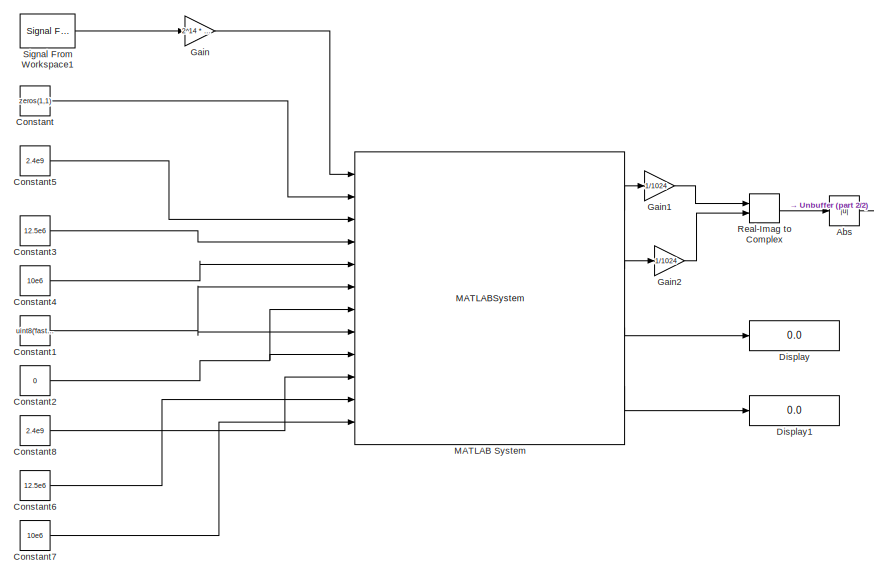
[diagram: root canvas - part 1/2, left side, full height]
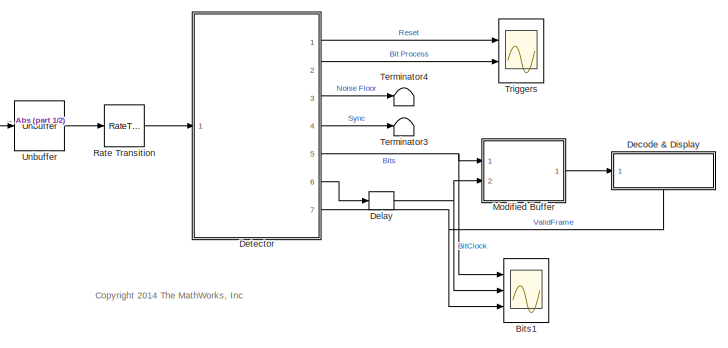
[diagram: root canvas - part 2/2, middle right region]
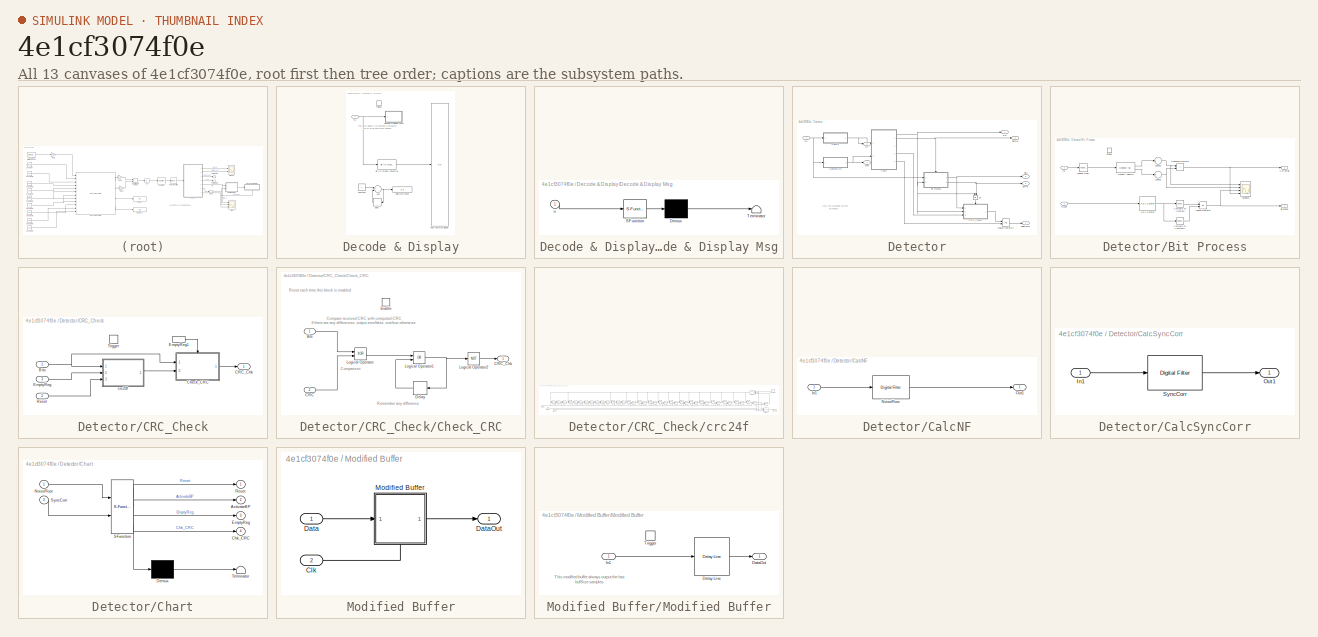
[diagram: thumbnail index - all 13 canvases of the model, root first then tree order]
MODEL slx_4e1cf3074f0e
KIND model
CONFIG AbsTol = auto
CONFIG EnableMultiTasking = off
CONFIG FixedStep = auto
CONFIG MaxStep = auto
CONFIG MinStep = auto
CONFIG PreLoadFcn = load data_Yb\nDataIn = Yb_with_time(:,2);\nWL=14;\nn = length(DataIn);\n
CONFIG RelTol = 1e-3
CONFIG SampleTimeConstraint = Unconstrained
CONFIG Solver = VariableStepDiscrete
CONFIG SolverName = VariableStepDiscrete
CONFIG StartTime = 0.0
CONFIG StopTime = 3e6
BLOCK [Abs] Abs
  SaturateOnIntegerOverflow = off
BLOCK [Scope] Bits1
  NumInputPorts = 3
  Ports = [3]
  ScopeSpecificationString = C++SS(StrPVP('Location','[451, 237, 1357, 757]'),StrPVP('Open','off'),StrPVP('ZoomMode','xonly'),MxPVP('AxesTitles',53,'struct(''axes1'',''%<SignalLabel>'',''axes2'',''%<SignalLabel>'',''axes3'',''%<SignalLabel>'')'),MxPVP('ScopeGraphics',56,'struct(''FigureColor'',''[0.501960784313725 0.501960784313725 0.501960784313725]'',''AxesColor'',''[0 0 0]'',''AxesTickColor'',''[1 1 1]'',''LineColors'',''[...<+433ch>
BLOCK [Constant] Constant
  FramePeriod = 1e6
  SamplingMode = Frame based
  Value = zeros(1,1)
  VectorParams1D = off
BLOCK [Constant] Constant1
  SampleTime = -1
  Value = uint8('fast_attack')
BLOCK [Constant] Constant2
  SampleTime = -1
  Value = 0
BLOCK [Constant] Constant3
  SampleTime = -1
  Value = 12.5e6
BLOCK [Constant] Constant4
  SampleTime = -1
  Value = 10e6
BLOCK [Constant] Constant5
  SampleTime = -1
  Value = 2.4e9
BLOCK [Constant] Constant6
  SampleTime = -1
  Value = 12.5e6
BLOCK [Constant] Constant7
  SampleTime = -1
  Value = 10e6
BLOCK [Constant] Constant8
  SampleTime = -1
  Value = 2.4e9
BLOCK [SubSystem] Decode & Display
  Ports = [1, 0, 0, 1]
  RequestExecContextInheritance = off
  Variant = off
BLOCK [Sum] Decode & Display/Add
  InputSameDT = off
  OutDataTypeStr = Inherit: Inherit via internal rule
  Ports = [2, 1]
  SaturateOnIntegerOverflow = off
BLOCK [Reference] Decode & Display/Bit to Integer Converter  REF=commutil2/Bit to Integer
Converter
  Ports = [1, 1]
  SourceBlock = commutil2/Bit to Integer\nConverter
  SourceProductBaseCode = CM
  SourceProductName = Communications System Toolbox
  SourceType = Bit to Integer Converter
BLOCK [Constant] Decode & Display/Constant
BLOCK [SubSystem] Decode & Display/Decode & Display Msg
  ErrorFcn = Stateflow.Translate.translate
  PermitHierarchicalResolution = ExplicitOnly
  Ports = [1]
  RequestExecContextInheritance = off
  SFBlockType = MATLAB Function
  TreatAsAtomicUnit = on
  Variant = off
BLOCK [Demux] Decode & Display/Decode & Display Msg/ Demux 
  Outputs = 1
  Ports = [1, 1]
BLOCK [S-Function] Decode & Display/Decode & Display Msg/ SFunction 
  EnableBusSupport = off
  FunctionName = sf_sfun
  PortCounts = [1 1]
  Ports = [1, 1]
  SFcnIsStateOwnerBlock = off
  SFunctionDeploymentMode = off
  Tag = Stateflow S-Function ModeS_Simulink_libiio 2
BLOCK [Terminator] Decode & Display/Decode & Display Msg/ Terminator 
BLOCK [Inport] Decode & Display/Decode & Display Msg/u
  IconDisplay = Port number
BLOCK [Delay] Decode & Display/Delay
  DelayLength = 1
  InputPortMap = u0
  Ports = [1, 1]
BLOCK [Display] Decode & Display/HEX raw msg display
  Decimation = 1
  Format = hex (Stored Integer)
  Ports = [1]
BLOCK [Inport] Decode & Display/In1
  IconDisplay = Port number
BLOCK [TriggerPort] Decode & Display/Trigger
  Ports = []
  StatesWhenEnabling = held
  VariantControl = Variant
BLOCK [Display] Decode & Display/Valid Msg Count
  Decimation = 1
  Ports = [1]
BLOCK [Delay] Delay
  DelayLength = 1
  InputPortMap = u0
  Ports = [1, 1]
BLOCK [SubSystem] Detector
  Ports = [1, 7]
  RequestExecContextInheritance = off
  Variant = off
BLOCK [SubSystem] Detector/Bit Process
  Ports = [2, 2, 1]
  RequestExecContextInheritance = off
  TreatAsAtomicUnit = on
  Variant = off
BLOCK [Outport] Detector/Bit Process/BitTrigger
  IconDisplay = Port number
  InitialOutput = 0
  Port = 2
BLOCK [Reference] Detector/Bit Process/Compare To Constant  REF=simulink/Logic and Bit
Operations/Compare
To Constant
  Ports = [1, 1]
  SourceBlock = simulink/Logic and Bit\nOperations/Compare\nTo Constant
  SourceProductBaseCode = SL
  SourceProductName = Simulink
  SourceType = Compare To Constant
BLOCK [Reference] Detector/Bit Process/Compare To Constant1  REF=simulink/Logic and Bit
Operations/Compare
To Constant
  Ports = [1, 1]
  SourceBlock = simulink/Logic and Bit\nOperations/Compare\nTo Constant
  SourceProductBaseCode = SL
  SourceProductName = Simulink
  SourceType = Compare To Constant
BLOCK [Outport] Detector/Bit Process/CurrentBit
  IconDisplay = Port number
  InitialOutput = 0
BLOCK [EnablePort] Detector/Bit Process/Enable
  Ports = []
BLOCK [Reference] Detector/Bit Process/HDL Counter  REF=hdlsllib/HDL Operations/HDL Counter
  Ports = [1, 1]
  SourceBlock = hdlsllib/HDL Operations/HDL Counter
  SourceProductBaseCode = HD
  SourceProductName = HDL Coder
  SourceType = HDL Counter
BLOCK [Inport] Detector/Bit Process/In1
  IconDisplay = Port number
BLOCK [Logic] Detector/Bit Process/Logical Operator
  AllPortsSameDT = off
  Operator = OR
  OutDataTypeStr = boolean
  Ports = [2, 1]
BLOCK [Sum] Detector/Bit Process/Logical0
  AccumDataTypeStr = double
  InputSameDT = off
  Inputs = +
  OutDataTypeStr = Inherit: Same as accumulator
  Ports = [1, 1]
  SaturateOnIntegerOverflow = off
BLOCK [Sum] Detector/Bit Process/Logical1
  AccumDataTypeStr = double
  InputSameDT = off
  Inputs = +
  OutDataTypeStr = Inherit: Same as accumulator
  Ports = [1, 1]
  SaturateOnIntegerOverflow = off
BLOCK [Reference] Detector/Bit Process/Multiport Selector  REF=dspindex/Multiport
Selector
  Ports = [1, 2]
  SourceBlock = dspindex/Multiport\nSelector
  SourceProductBaseCode = DS
  SourceProductName = DSP System Toolbox
  SourceType = Multiport Selector
BLOCK [RelationalOperator] Detector/Bit Process/Relational Operator
  InputSameDT = off
  Operator = >
  OutDataTypeStr = boolean
  Ports = [2, 1]
BLOCK [Inport] Detector/Bit Process/Reset
  IconDisplay = Port number
  Port = 2
BLOCK [Reference] Detector/Bit Process/Tapped Delay  REF=simulink/Discrete/Tapped Delay
  Ports = [1, 1]
  SourceBlock = simulink/Discrete/Tapped Delay
  SourceProductBaseCode = SL
  SourceProductName = Simulink
  SourceType = Tapped Delay Line
BLOCK [Scope] Detector/Bit Process/decisions
  NumInputPorts = 4
  Ports = [4]
  ScopeSpecificationString = C++SS(StrPVP('Location','[49, 532, 1722, 1128]'),StrPVP('Open','off'),StrPVP('ZoomMode','xonly'),MxPVP('AxesTitles',53,'struct(''axes1'',''%<SignalLabel>'',''axes2'',''%<SignalLabel>'',''axes3'',''%<SignalLabel>'',''axes4'',''%<SignalLabel>'')'),MxPVP('ScopeGraphics',56,'struct(''FigureColor'',''[0.5 0.5 0.5]'',''AxesColor'',''[0 0 0]'',''AxesTickColor'',''[1 1 1]'',''LineColors'',''[1 1 0;1 0 1;0...<+413ch>
BLOCK [Outport] Detector/BitClk
  IconDisplay = Port number
  Port = 6
BLOCK [Outport] Detector/BitProc
  IconDisplay = Port number
  Port = 2
BLOCK [Outport] Detector/Bits
  IconDisplay = Port number
  Port = 5
BLOCK [SubSystem] Detector/CRC_Check
  Ports = [3, 1, 0, 1]
  RequestExecContextInheritance = off
  Variant = off
BLOCK [Inport] Detector/CRC_Check/Bits
  IconDisplay = Port number
BLOCK [Outport] Detector/CRC_Check/CRC_Chk
  IconDisplay = Port number
BLOCK [SubSystem] Detector/CRC_Check/Check_CRC
  Ports = [2, 1, 1]
  RequestExecContextInheritance = off
  TreatAsAtomicUnit = on
  Variant = off
BLOCK [Inport] Detector/CRC_Check/Check_CRC/Bits
  IconDisplay = Port number
BLOCK [Inport] Detector/CRC_Check/Check_CRC/CRC
  IconDisplay = Port number
  Port = 2
BLOCK [Outport] Detector/CRC_Check/Check_CRC/CRC_Chk
  IconDisplay = Port number
  InitialOutput = 0
BLOCK [Delay] Detector/CRC_Check/Check_CRC/Delay
  DelayLength = 1
  InputPortMap = u0
  Ports = [1, 1]
BLOCK [EnablePort] Detector/CRC_Check/Check_CRC/Enable
  Ports = []
  StatesWhenEnabling = reset
BLOCK [Logic] Detector/CRC_Check/Check_CRC/Logical Operator
  AllPortsSameDT = off
  Operator = XOR
  OutDataTypeStr = boolean
  Ports = [2, 1]
BLOCK [Logic] Detector/CRC_Check/Check_CRC/Logical Operator1
  AllPortsSameDT = off
  Operator = OR
  OutDataTypeStr = boolean
  Ports = [2, 1]
BLOCK [Logic] Detector/CRC_Check/Check_CRC/Logical Operator2
  AllPortsSameDT = off
  Operator = NOT
  OutDataTypeStr = boolean
  Ports = [1, 1]
BLOCK [Inport] Detector/CRC_Check/EmptyReg
  IconDisplay = Port number
  Port = 3
BLOCK [InportShadow] Detector/CRC_Check/EmptyReg1
  IconDisplay = Port number
  Port = 3
BLOCK [Inport] Detector/CRC_Check/Reset
  IconDisplay = Port number
  Port = 2
BLOCK [TriggerPort] Detector/CRC_Check/Trigger
  Ports = []
  StatesWhenEnabling = held
  VariantControl = Variant
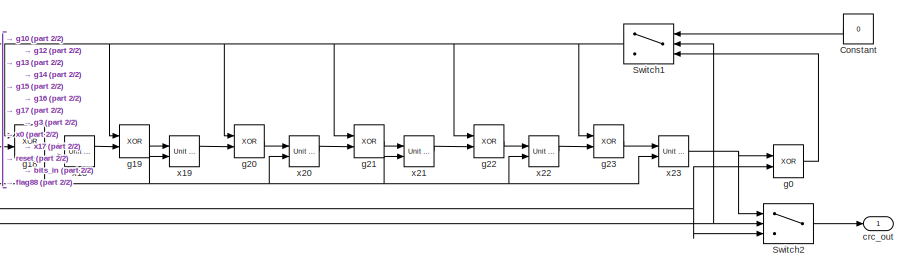
[diagram: Detector/CRC_Check/crc24f - part 1/2, right side, full height]
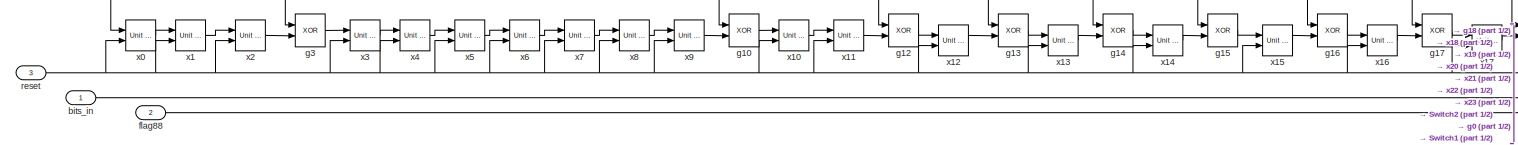
[diagram: Detector/CRC_Check/crc24f - part 2/2, bottom left region]
BLOCK [SubSystem] Detector/CRC_Check/crc24f
  Ports = [3, 1]
  RequestExecContextInheritance = off
  Variant = off
BLOCK [Constant] Detector/CRC_Check/crc24f/Constant
  OutDataTypeStr = boolean
  SampleTime = -1
  Value = 0
BLOCK [Switch] Detector/CRC_Check/crc24f/Switch1
  Criteria = u2 > Threshold
  InputSameDT = off
  SaturateOnIntegerOverflow = off
  Threshold = 0.5
BLOCK [Switch] Detector/CRC_Check/crc24f/Switch2
  Criteria = u2 > Threshold
  InputSameDT = off
  SaturateOnIntegerOverflow = off
  Threshold = 0.5
BLOCK [Inport] Detector/CRC_Check/crc24f/bits_in
  IconDisplay = Port number
BLOCK [Outport] Detector/CRC_Check/crc24f/crc_out
  IconDisplay = Port number
BLOCK [Inport] Detector/CRC_Check/crc24f/flag88
  IconDisplay = Port number
  Port = 2
BLOCK [Logic] Detector/CRC_Check/crc24f/g0
  AllPortsSameDT = off
  Operator = XOR
  OutDataTypeStr = boolean
  Ports = [2, 1]
BLOCK [Logic] Detector/CRC_Check/crc24f/g10
  AllPortsSameDT = off
  Operator = XOR
  OutDataTypeStr = boolean
  Ports = [2, 1]
BLOCK [Logic] Detector/CRC_Check/crc24f/g12
  AllPortsSameDT = off
  Operator = XOR
  OutDataTypeStr = boolean
  Ports = [2, 1]
BLOCK [Logic] Detector/CRC_Check/crc24f/g13
  AllPortsSameDT = off
  Operator = XOR
  OutDataTypeStr = boolean
  Ports = [2, 1]
BLOCK [Logic] Detector/CRC_Check/crc24f/g14
  AllPortsSameDT = off
  Operator = XOR
  OutDataTypeStr = boolean
  Ports = [2, 1]
BLOCK [Logic] Detector/CRC_Check/crc24f/g15
  AllPortsSameDT = off
  Operator = XOR
  OutDataTypeStr = boolean
  Ports = [2, 1]
BLOCK [Logic] Detector/CRC_Check/crc24f/g16
  AllPortsSameDT = off
  Operator = XOR
  OutDataTypeStr = boolean
  Ports = [2, 1]
BLOCK [Logic] Detector/CRC_Check/crc24f/g17
  AllPortsSameDT = off
  Operator = XOR
  OutDataTypeStr = boolean
  Ports = [2, 1]
BLOCK [Logic] Detector/CRC_Check/crc24f/g18
  AllPortsSameDT = off
  Operator = XOR
  OutDataTypeStr = boolean
  Ports = [2, 1]
BLOCK [Logic] Detector/CRC_Check/crc24f/g19
  AllPortsSameDT = off
  Operator = XOR
  OutDataTypeStr = boolean
  Ports = [2, 1]
BLOCK [Logic] Detector/CRC_Check/crc24f/g20
  AllPortsSameDT = off
  Operator = XOR
  OutDataTypeStr = boolean
  Ports = [2, 1]
BLOCK [Logic] Detector/CRC_Check/crc24f/g21
  AllPortsSameDT = off
  Operator = XOR
  OutDataTypeStr = boolean
  Ports = [2, 1]
BLOCK [Logic] Detector/CRC_Check/crc24f/g22
  AllPortsSameDT = off
  Operator = XOR
  OutDataTypeStr = boolean
  Ports = [2, 1]
BLOCK [Logic] Detector/CRC_Check/crc24f/g23
  AllPortsSameDT = off
  Operator = XOR
  OutDataTypeStr = boolean
  Ports = [2, 1]
BLOCK [Logic] Detector/CRC_Check/crc24f/g3
  AllPortsSameDT = off
  Operator = XOR
  OutDataTypeStr = boolean
  Ports = [2, 1]
BLOCK [Inport] Detector/CRC_Check/crc24f/reset
  IconDisplay = Port number
  Port = 3
BLOCK [Reference] Detector/CRC_Check/crc24f/x0  REF=simulink_need_slupdate/Unit Delay
Resettable
  Ports = [2, 1]
  SourceBlock = simulink_need_slupdate/Unit Delay\nResettable
  SourceProductBaseCode = SL
  SourceProductName = Simulink
  SourceType = Unit Delay Resettable
BLOCK [Reference] Detector/CRC_Check/crc24f/x1  REF=simulink_need_slupdate/Unit Delay
Resettable
  Ports = [2, 1]
  SourceBlock = simulink_need_slupdate/Unit Delay\nResettable
  SourceProductBaseCode = SL
  SourceProductName = Simulink
  SourceType = Unit Delay Resettable
BLOCK [Reference] Detector/CRC_Check/crc24f/x10  REF=simulink_need_slupdate/Unit Delay
Resettable
  Ports = [2, 1]
  SourceBlock = simulink_need_slupdate/Unit Delay\nResettable
  SourceProductBaseCode = SL
  SourceProductName = Simulink
  SourceType = Unit Delay Resettable
BLOCK [Reference] Detector/CRC_Check/crc24f/x11  REF=simulink_need_slupdate/Unit Delay
Resettable
  Ports = [2, 1]
  SourceBlock = simulink_need_slupdate/Unit Delay\nResettable
  SourceProductBaseCode = SL
  SourceProductName = Simulink
  SourceType = Unit Delay Resettable
BLOCK [Reference] Detector/CRC_Check/crc24f/x12  REF=simulink_need_slupdate/Unit Delay
Resettable
  Ports = [2, 1]
  SourceBlock = simulink_need_slupdate/Unit Delay\nResettable
  SourceProductBaseCode = SL
  SourceProductName = Simulink
  SourceType = Unit Delay Resettable
BLOCK [Reference] Detector/CRC_Check/crc24f/x13  REF=simulink_need_slupdate/Unit Delay
Resettable
  Ports = [2, 1]
  SourceBlock = simulink_need_slupdate/Unit Delay\nResettable
  SourceProductBaseCode = SL
  SourceProductName = Simulink
  SourceType = Unit Delay Resettable
BLOCK [Reference] Detector/CRC_Check/crc24f/x14  REF=simulink_need_slupdate/Unit Delay
Resettable
  Ports = [2, 1]
  SourceBlock = simulink_need_slupdate/Unit Delay\nResettable
  SourceProductBaseCode = SL
  SourceProductName = Simulink
  SourceType = Unit Delay Resettable
BLOCK [Reference] Detector/CRC_Check/crc24f/x15  REF=simulink_need_slupdate/Unit Delay
Resettable
  Ports = [2, 1]
  SourceBlock = simulink_need_slupdate/Unit Delay\nResettable
  SourceProductBaseCode = SL
  SourceProductName = Simulink
  SourceType = Unit Delay Resettable
BLOCK [Reference] Detector/CRC_Check/crc24f/x16  REF=simulink_need_slupdate/Unit Delay
Resettable
  Ports = [2, 1]
  SourceBlock = simulink_need_slupdate/Unit Delay\nResettable
  SourceProductBaseCode = SL
  SourceProductName = Simulink
  SourceType = Unit Delay Resettable
BLOCK [Reference] Detector/CRC_Check/crc24f/x17  REF=simulink_need_slupdate/Unit Delay
Resettable
  Ports = [2, 1]
  SourceBlock = simulink_need_slupdate/Unit Delay\nResettable
  SourceProductBaseCode = SL
  SourceProductName = Simulink
  SourceType = Unit Delay Resettable
BLOCK [Reference] Detector/CRC_Check/crc24f/x18  REF=simulink_need_slupdate/Unit Delay
Resettable
  Ports = [2, 1]
  SourceBlock = simulink_need_slupdate/Unit Delay\nResettable
  SourceProductBaseCode = SL
  SourceProductName = Simulink
  SourceType = Unit Delay Resettable
BLOCK [Reference] Detector/CRC_Check/crc24f/x19  REF=simulink_need_slupdate/Unit Delay
Resettable
  Ports = [2, 1]
  SourceBlock = simulink_need_slupdate/Unit Delay\nResettable
  SourceProductBaseCode = SL
  SourceProductName = Simulink
  SourceType = Unit Delay Resettable
BLOCK [Reference] Detector/CRC_Check/crc24f/x2  REF=simulink_need_slupdate/Unit Delay
Resettable
  Ports = [2, 1]
  SourceBlock = simulink_need_slupdate/Unit Delay\nResettable
  SourceProductBaseCode = SL
  SourceProductName = Simulink
  SourceType = Unit Delay Resettable
BLOCK [Reference] Detector/CRC_Check/crc24f/x20  REF=simulink_need_slupdate/Unit Delay
Resettable
  Ports = [2, 1]
  SourceBlock = simulink_need_slupdate/Unit Delay\nResettable
  SourceProductBaseCode = SL
  SourceProductName = Simulink
  SourceType = Unit Delay Resettable
BLOCK [Reference] Detector/CRC_Check/crc24f/x21  REF=simulink_need_slupdate/Unit Delay
Resettable
  Ports = [2, 1]
  SourceBlock = simulink_need_slupdate/Unit Delay\nResettable
  SourceProductBaseCode = SL
  SourceProductName = Simulink
  SourceType = Unit Delay Resettable
BLOCK [Reference] Detector/CRC_Check/crc24f/x22  REF=simulink_need_slupdate/Unit Delay
Resettable
  Ports = [2, 1]
  SourceBlock = simulink_need_slupdate/Unit Delay\nResettable
  SourceProductBaseCode = SL
  SourceProductName = Simulink
  SourceType = Unit Delay Resettable
BLOCK [Reference] Detector/CRC_Check/crc24f/x23  REF=simulink_need_slupdate/Unit Delay
Resettable
  Ports = [2, 1]
  SourceBlock = simulink_need_slupdate/Unit Delay\nResettable
  SourceProductBaseCode = SL
  SourceProductName = Simulink
  SourceType = Unit Delay Resettable
BLOCK [Reference] Detector/CRC_Check/crc24f/x3  REF=simulink_need_slupdate/Unit Delay
Resettable
  Ports = [2, 1]
  SourceBlock = simulink_need_slupdate/Unit Delay\nResettable
  SourceProductBaseCode = SL
  SourceProductName = Simulink
  SourceType = Unit Delay Resettable
BLOCK [Reference] Detector/CRC_Check/crc24f/x4  REF=simulink_need_slupdate/Unit Delay
Resettable
  Ports = [2, 1]
  SourceBlock = simulink_need_slupdate/Unit Delay\nResettable
  SourceProductBaseCode = SL
  SourceProductName = Simulink
  SourceType = Unit Delay Resettable
BLOCK [Reference] Detector/CRC_Check/crc24f/x5  REF=simulink_need_slupdate/Unit Delay
Resettable
  Ports = [2, 1]
  SourceBlock = simulink_need_slupdate/Unit Delay\nResettable
  SourceProductBaseCode = SL
  SourceProductName = Simulink
  SourceType = Unit Delay Resettable
BLOCK [Reference] Detector/CRC_Check/crc24f/x6  REF=simulink_need_slupdate/Unit Delay
Resettable
  Ports = [2, 1]
  SourceBlock = simulink_need_slupdate/Unit Delay\nResettable
  SourceProductBaseCode = SL
  SourceProductName = Simulink
  SourceType = Unit Delay Resettable
BLOCK [Reference] Detector/CRC_Check/crc24f/x7  REF=simulink_need_slupdate/Unit Delay
Resettable
  Ports = [2, 1]
  SourceBlock = simulink_need_slupdate/Unit Delay\nResettable
  SourceProductBaseCode = SL
  SourceProductName = Simulink
  SourceType = Unit Delay Resettable
BLOCK [Reference] Detector/CRC_Check/crc24f/x8  REF=simulink_need_slupdate/Unit Delay
Resettable
  Ports = [2, 1]
  SourceBlock = simulink_need_slupdate/Unit Delay\nResettable
  SourceProductBaseCode = SL
  SourceProductName = Simulink
  SourceType = Unit Delay Resettable
BLOCK [Reference] Detector/CRC_Check/crc24f/x9  REF=simulink_need_slupdate/Unit Delay
Resettable
  Ports = [2, 1]
  SourceBlock = simulink_need_slupdate/Unit Delay\nResettable
  SourceProductBaseCode = SL
  SourceProductName = Simulink
  SourceType = Unit Delay Resettable
BLOCK [SubSystem] Detector/CalcNF
  Ports = [1, 1]
  RequestExecContextInheritance = off
  Variant = off
BLOCK [Inport] Detector/CalcNF/In1
  IconDisplay = Port number
BLOCK [Reference] Detector/CalcNF/NoiseFloor  REF=dspobslib/Digital Filter
  Ports = [1, 1]
  SourceBlock = dspobslib/Digital Filter
  SourceProductBaseCode = DS
  SourceProductName = DSP System Toolbox
  SourceType = Digital Filter
  UserDataPersistent = on
BLOCK [Outport] Detector/CalcNF/Out1
  IconDisplay = Port number
BLOCK [SubSystem] Detector/CalcSyncCorr
  Ports = [1, 1]
  RequestExecContextInheritance = off
  Variant = off
BLOCK [Inport] Detector/CalcSyncCorr/In1
  IconDisplay = Port number
BLOCK [Outport] Detector/CalcSyncCorr/Out1
  IconDisplay = Port number
BLOCK [Reference] Detector/CalcSyncCorr/SyncCorr  REF=dspobslib/Digital Filter
  Ports = [1, 1]
  SourceBlock = dspobslib/Digital Filter
  SourceProductBaseCode = DS
  SourceProductName = DSP System Toolbox
  SourceType = Digital Filter
  UserDataPersistent = on
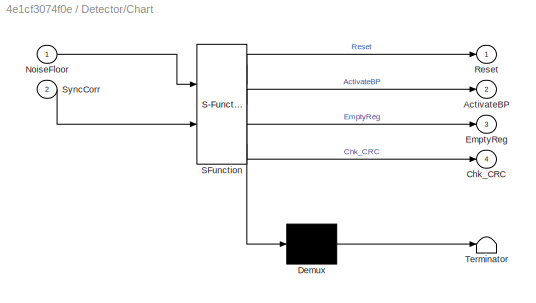
BLOCK [SubSystem] Detector/Chart
  ErrorFcn = Stateflow.Translate.translate
  PermitHierarchicalResolution = ExplicitOnly
  Ports = [2, 4]
  RequestExecContextInheritance = off
  SFBlockType = Chart
  TreatAsAtomicUnit = on
  Variant = off
BLOCK [Demux] Detector/Chart/ Demux 
  Outputs = 1
  Ports = [1, 1]
BLOCK [S-Function] Detector/Chart/ SFunction 
  EnableBusSupport = off
  FunctionName = sf_sfun
  PortCounts = [2 5]
  Ports = [2, 5]
  SFcnIsStateOwnerBlock = off
  SFunctionDeploymentMode = off
  Tag = Stateflow S-Function ModeS_Simulink_libiio 1
BLOCK [Terminator] Detector/Chart/ Terminator 
BLOCK [Outport] Detector/Chart/ActivateBP
  IconDisplay = Port number
  Port = 2
BLOCK [Outport] Detector/Chart/Chk_CRC
  IconDisplay = Port number
  Port = 4
BLOCK [Outport] Detector/Chart/EmptyReg
  IconDisplay = Port number
  Port = 3
BLOCK [Inport] Detector/Chart/NoiseFloor
  IconDisplay = Port number
BLOCK [Outport] Detector/Chart/Reset
  IconDisplay = Port number
BLOCK [Inport] Detector/Chart/SyncCorr
  IconDisplay = Port number
  Port = 2
BLOCK [Inport] Detector/In1
  IconDisplay = Port number
BLOCK [Logic] Detector/Logical Operator1
  AllPortsSameDT = off
  OutDataTypeStr = boolean
  Ports = [2, 1]
BLOCK [Outport] Detector/NF
  IconDisplay = Port number
  Port = 3
BLOCK [Outport] Detector/Rst
  IconDisplay = Port number
BLOCK [Outport] Detector/Sync
  IconDisplay = Port number
  Port = 4
BLOCK [Outport] Detector/ValidFrame
  IconDisplay = Port number
  Port = 7
BLOCK [Logic] Detector/g3
  AllPortsSameDT = off
  Operator = OR
  OutDataTypeStr = boolean
  Ports = [2, 1]
BLOCK [Display] Display
  Decimation = 1
  Ports = [1]
BLOCK [Display] Display1
  Decimation = 1
  Ports = [1]
BLOCK [Gain] Gain
  Gain = 2^14 * 1e4
  OutDataTypeStr = Inherit: Inherit via internal rule
  ParamDataTypeStr = Inherit: Inherit via internal rule
  SaturateOnIntegerOverflow = off
BLOCK [Gain] Gain1
  Gain = 1/1024
  OutDataTypeStr = Inherit: Inherit via internal rule
  ParamDataTypeStr = Inherit: Inherit via internal rule
  SaturateOnIntegerOverflow = off
BLOCK [Gain] Gain2
  Gain = 1/1024
  OutDataTypeStr = Inherit: Inherit via internal rule
  ParamDataTypeStr = Inherit: Inherit via internal rule
  SaturateOnIntegerOverflow = off
BLOCK [MATLABSystem] MATLAB System
  DialogController = sysobjdialog.BlockDynDialog
  MaskDisplay = disp('ad9361');\nport_label('input',1,'DATA_IN1');\nport_label('input',2,'DATA_IN2');\nport_label('input',3,'RX_LO_FREQ');\nport_label('input',4,'RX_SAMPLING_FREQ');\nport_label('input',5,'RX_RF_BANDWIDTH');\nport_label('input',6,'RX1_GAIN_MODE');\nport_label('input',7,'RX1_GAIN');\nport_label('input',8,'RX2_GAIN_MODE');\nport_label('input',9,'RX2_GAIN');\nport_label('input',10,'TX_LO_FREQ');\nport_label('in...<+212ch>
  MaskType = iio_sys_obj
  Ports = [12, 4]
  SimulateUsing = Interpreted execution
  System = iio_sys_obj
  dev_name = ad9361
  in_ch_no = 2
  in_ch_size = 1e6
  ip_address = 192.168.3.2
  out_ch_no = 2
  out_ch_size = 1e6
BLOCK [SubSystem] Modified Buffer
  Ports = [2, 1]
  RequestExecContextInheritance = off
  TreatAsAtomicUnit = on
  Variant = off
BLOCK [Inport] Modified Buffer/Clk
  IconDisplay = Port number
  Port = 2
BLOCK [Inport] Modified Buffer/Data
  IconDisplay = Port number
BLOCK [Outport] Modified Buffer/DataOut
  IconDisplay = Port number
BLOCK [SubSystem] Modified Buffer/Modified Buffer
  Ports = [1, 1, 0, 1]
  RequestExecContextInheritance = off
  Variant = off
BLOCK [Outport] Modified Buffer/Modified Buffer/DataOut
  IconDisplay = Port number
BLOCK [Reference] Modified Buffer/Modified Buffer/Delay Line  REF=dspbuff3/Delay Line
  Ports = [1, 1]
  SourceBlock = dspbuff3/Delay Line
  SourceProductBaseCode = DS
  SourceProductName = DSP System Toolbox
  SourceType = Delay Line
  UserDataPersistent = on
BLOCK [Inport] Modified Buffer/Modified Buffer/In1
  IconDisplay = Port number
BLOCK [TriggerPort] Modified Buffer/Modified Buffer/Trigger
  Ports = []
  StatesWhenEnabling = held
  VariantControl = Variant
BLOCK [RateTransition] Rate Transition
BLOCK [RealImagToComplex] Real-Imag to Complex
  Ports = [2, 1]
BLOCK [Reference] Signal From Workspace1  REF=dspsrcs4/Signal From
Workspace
  Ports = [0, 1]
  SourceBlock = dspsrcs4/Signal From\nWorkspace
  SourceProductBaseCode = DS
  SourceProductName = DSP System Toolbox
  SourceType = Signal From Workspace
BLOCK [Terminator] Terminator3
BLOCK [Terminator] Terminator4
BLOCK [Scope] Triggers
  NumInputPorts = 2
  Ports = [2]
  ScopeSpecificationString = C++SS(StrPVP('Location','[451, 89, 1357, 377]'),StrPVP('Open','off'),StrPVP('ZoomMode','xonly'),MxPVP('AxesTitles',53,'struct(''axes1'',''%<SignalLabel>'',''axes2'',''%<SignalLabel>'')'),MxPVP('ScopeGraphics',56,'struct(''FigureColor'',''[0.501960784313725 0.501960784313725 0.501960784313725]'',''AxesColor'',''[0 0 0]'',''AxesTickColor'',''[1 1 1]'',''LineColors'',''[1 1 0;1 0 1;0 1 1;1 0 0;0 1 0;...<+426ch>
BLOCK [Unbuffer] Unbuffer
  Ports = [1, 1]
ANNOTATION (root): <copyright redacted>
ANNOTATION Decode & Display: This block displays the decoded message in the MATLAB Command Window
ANNOTATION Detector: Gets the message correct: 8D400927....
ANNOTATION Detector/CRC_Check/Check_CRC: Compare received CRC with computed CRC If there are any differences, output zero/false, one/true otherwise.
ANNOTATION Detector/CRC_Check/Check_CRC: Comparison
ANNOTATION Detector/CRC_Check/Check_CRC: Remember any difference
ANNOTATION Detector/CRC_Check/Check_CRC: Reset each time this block is enabled
ANNOTATION Modified Buffer/Modified Buffer: This modified buffer always output the last bufSize samples.
LINE Abs:1 -> Unbuffer:1
NET Constant1:1 -> MATLAB System:6, MATLAB System:8
NET Constant2:1 -> MATLAB System:7, MATLAB System:9
LINE Constant3:1 -> MATLAB System:4
LINE Constant4:1 -> MATLAB System:5
LINE Constant5:1 -> MATLAB System:3
LINE Constant6:1 -> MATLAB System:11
LINE Constant7:1 -> MATLAB System:12
LINE Constant8:1 -> MATLAB System:10
LINE Constant:1 -> MATLAB System:2
NET Decode & Display/Add:1 -> Decode & Display/Delay:1, Decode & Display/Valid Msg Count:1
LINE Decode & Display/Bit to Integer Converter:1 -> Decode & Display/HEX raw msg display:1
LINE Decode & Display/Constant:1 -> Decode & Display/Add:1
LINE Decode & Display/Delay:1 -> Decode & Display/Add:2
NET Decode & Display/In1:1 -> Decode & Display/Bit to Integer Converter:1, Decode & Display/Decode & Display Msg:1
NET Delay:1 -> Bits1:2, Modified Buffer:2
LINE Detector/Bit Process/Compare To Constant1:1 -> Detector/Bit Process/Logical Operator:2
LINE Detector/Bit Process/Compare To Constant:1 -> Detector/Bit Process/Logical Operator:1
NET Detector/Bit Process/HDL Counter:1 -> Detector/Bit Process/Compare To Constant1:1, Detector/Bit Process/Compare To Constant:1
LINE Detector/Bit Process/In1:1 -> Detector/Bit Process/Tapped Delay:1
NET Detector/Bit Process/Logical Operator:1 -> Detector/Bit Process/BitTrigger:1, Detector/Bit Process/decisions:3
NET Detector/Bit Process/Logical0:1 -> Detector/Bit Process/Relational Operator:2, Detector/Bit Process/decisions:2
NET Detector/Bit Process/Logical1:1 -> Detector/Bit Process/Relational Operator:1, Detector/Bit Process/decisions:1
LINE Detector/Bit Process/Multiport Selector:1 -> Detector/Bit Process/Logical1:1
LINE Detector/Bit Process/Multiport Selector:2 -> Detector/Bit Process/Logical0:1
NET Detector/Bit Process/Relational Operator:1 -> Detector/Bit Process/CurrentBit:1, Detector/Bit Process/decisions:4
LINE Detector/Bit Process/Reset:1 -> Detector/Bit Process/HDL Counter:1
LINE Detector/Bit Process/Tapped Delay:1 -> Detector/Bit Process/Multiport Selector:1
NET Detector/Bit Process:1 -> Detector/Bits:1, Detector/CRC_Check:1
NET Detector/Bit Process:2 -> Detector/BitClk:1, Detector/g3:2
NET Detector/CRC_Check/Bits:1 -> Detector/CRC_Check/Check_CRC:1, Detector/CRC_Check/crc24f:1
LINE Detector/CRC_Check/Check_CRC/Bits:1 -> Detector/CRC_Check/Check_CRC/Logical Operator:1
LINE Detector/CRC_Check/Check_CRC/CRC:1 -> Detector/CRC_Check/Check_CRC/Logical Operator:2
LINE Detector/CRC_Check/Check_CRC/Delay:1 -> Detector/CRC_Check/Check_CRC/Logical Operator1:2
NET Detector/CRC_Check/Check_CRC/Logical Operator1:1 -> Detector/CRC_Check/Check_CRC/Delay:1, Detector/CRC_Check/Check_CRC/Logical Operator2:1
LINE Detector/CRC_Check/Check_CRC/Logical Operator2:1 -> Detector/CRC_Check/Check_CRC/CRC_Chk:1
LINE Detector/CRC_Check/Check_CRC/Logical Operator:1 -> Detector/CRC_Check/Check_CRC/Logical Operator1:1
LINE Detector/CRC_Check/Check_CRC:1 -> Detector/CRC_Check/CRC_Chk:1
LINE Detector/CRC_Check/EmptyReg1:1 -> Detector/CRC_Check/Check_CRC:enable
LINE Detector/CRC_Check/EmptyReg:1 -> Detector/CRC_Check/crc24f:2
LINE Detector/CRC_Check/Reset:1 -> Detector/CRC_Check/crc24f:3
LINE Detector/CRC_Check/crc24f/Constant:1 -> Detector/CRC_Check/crc24f/Switch1:1
NET Detector/CRC_Check/crc24f/Switch1:1 -> Detector/CRC_Check/crc24f/g10:1, Detector/CRC_Check/crc24f/g12:1, Detector/CRC_Check/crc24f/g13:1, Detector/CRC_Check/crc24f/g14:1, Detector/CRC_Check/crc24f/g15:1, Detector/CRC_Check/crc24f/g16:1, Detector/CRC_Check/crc24f/g17:1, Detector/CRC_Check/crc24f/g18:1, Detector/CRC_Check/crc24f/g19:1, Detector/CRC_Check/crc24f/g20:1, Detector/CRC_Check/crc24f/g21:1, Detector/CRC_Check/crc24f/g22:1, Detector/CRC_Check/crc24f/g23:1, Detector/CRC_Check/crc24f/g3:1, Detector/CRC_Check/crc24f/x0:1
LINE Detector/CRC_Check/crc24f/Switch2:1 -> Detector/CRC_Check/crc24f/crc_out:1
NET Detector/CRC_Check/crc24f/bits_in:1 -> Detector/CRC_Check/crc24f/Switch2:3, Detector/CRC_Check/crc24f/g0:2
NET Detector/CRC_Check/crc24f/flag88:1 -> Detector/CRC_Check/crc24f/Switch1:2, Detector/CRC_Check/crc24f/Switch2:2
LINE Detector/CRC_Check/crc24f/g0:1 -> Detector/CRC_Check/crc24f/Switch1:3
LINE Detector/CRC_Check/crc24f/g10:1 -> Detector/CRC_Check/crc24f/x10:1
LINE Detector/CRC_Check/crc24f/g12:1 -> Detector/CRC_Check/crc24f/x12:1
LINE Detector/CRC_Check/crc24f/g13:1 -> Detector/CRC_Check/crc24f/x13:1
LINE Detector/CRC_Check/crc24f/g14:1 -> Detector/CRC_Check/crc24f/x14:1
LINE Detector/CRC_Check/crc24f/g15:1 -> Detector/CRC_Check/crc24f/x15:1
LINE Detector/CRC_Check/crc24f/g16:1 -> Detector/CRC_Check/crc24f/x16:1
LINE Detector/CRC_Check/crc24f/g17:1 -> Detector/CRC_Check/crc24f/x17:1
LINE Detector/CRC_Check/crc24f/g18:1 -> Detector/CRC_Check/crc24f/x18:1
LINE Detector/CRC_Check/crc24f/g19:1 -> Detector/CRC_Check/crc24f/x19:1
LINE Detector/CRC_Check/crc24f/g20:1 -> Detector/CRC_Check/crc24f/x20:1
LINE Detector/CRC_Check/crc24f/g21:1 -> Detector/CRC_Check/crc24f/x21:1
LINE Detector/CRC_Check/crc24f/g22:1 -> Detector/CRC_Check/crc24f/x22:1
LINE Detector/CRC_Check/crc24f/g23:1 -> Detector/CRC_Check/crc24f/x23:1
LINE Detector/CRC_Check/crc24f/g3:1 -> Detector/CRC_Check/crc24f/x3:1
NET Detector/CRC_Check/crc24f/reset:1 -> Detector/CRC_Check/crc24f/x0:2, Detector/CRC_Check/crc24f/x10:2, Detector/CRC_Check/crc24f/x11:2, Detector/CRC_Check/crc24f/x12:2, Detector/CRC_Check/crc24f/x13:2, Detector/CRC_Check/crc24f/x14:2, Detector/CRC_Check/crc24f/x15:2, Detector/CRC_Check/crc24f/x16:2, Detector/CRC_Check/crc24f/x17:2, Detector/CRC_Check/crc24f/x18:2, Detector/CRC_Check/crc24f/x19:2, Detector/CRC_Check/crc24f/x1:2, Detector/CRC_Check/crc24f/x20:2, Detector/CRC_Check/crc24f/x21:2, Detector/CRC_Check/crc24f/x22:2, Detector/CRC_Check/crc24f/x23:2, Detector/CRC_Check/crc24f/x2:2, Detector/CRC_Check/crc24f/x3:2, Detector/CRC_Check/crc24f/x4:2, Detector/CRC_Check/crc24f/x5:2, Detector/CRC_Check/crc24f/x6:2, Detector/CRC_Check/crc24f/x7:2, Detector/CRC_Check/crc24f/x8:2, Detector/CRC_Check/crc24f/x9:2
LINE Detector/CRC_Check/crc24f/x0:1 -> Detector/CRC_Check/crc24f/x1:1
LINE Detector/CRC_Check/crc24f/x10:1 -> Detector/CRC_Check/crc24f/x11:1
LINE Detector/CRC_Check/crc24f/x11:1 -> Detector/CRC_Check/crc24f/g12:2
LINE Detector/CRC_Check/crc24f/x12:1 -> Detector/CRC_Check/crc24f/g13:2
LINE Detector/CRC_Check/crc24f/x13:1 -> Detector/CRC_Check/crc24f/g14:2
LINE Detector/CRC_Check/crc24f/x14:1 -> Detector/CRC_Check/crc24f/g15:2
LINE Detector/CRC_Check/crc24f/x15:1 -> Detector/CRC_Check/crc24f/g16:2
LINE Detector/CRC_Check/crc24f/x16:1 -> Detector/CRC_Check/crc24f/g17:2
LINE Detector/CRC_Check/crc24f/x17:1 -> Detector/CRC_Check/crc24f/g18:2
LINE Detector/CRC_Check/crc24f/x18:1 -> Detector/CRC_Check/crc24f/g19:2
LINE Detector/CRC_Check/crc24f/x19:1 -> Detector/CRC_Check/crc24f/g20:2
LINE Detector/CRC_Check/crc24f/x1:1 -> Detector/CRC_Check/crc24f/x2:1
LINE Detector/CRC_Check/crc24f/x20:1 -> Detector/CRC_Check/crc24f/g21:2
LINE Detector/CRC_Check/crc24f/x21:1 -> Detector/CRC_Check/crc24f/g22:2
LINE Detector/CRC_Check/crc24f/x22:1 -> Detector/CRC_Check/crc24f/g23:2
NET Detector/CRC_Check/crc24f/x23:1 -> Detector/CRC_Check/crc24f/Switch2:1, Detector/CRC_Check/crc24f/g0:1
LINE Detector/CRC_Check/crc24f/x2:1 -> Detector/CRC_Check/crc24f/g3:2
LINE Detector/CRC_Check/crc24f/x3:1 -> Detector/CRC_Check/crc24f/x4:1
LINE Detector/CRC_Check/crc24f/x4:1 -> Detector/CRC_Check/crc24f/x5:1
LINE Detector/CRC_Check/crc24f/x5:1 -> Detector/CRC_Check/crc24f/x6:1
LINE Detector/CRC_Check/crc24f/x6:1 -> Detector/CRC_Check/crc24f/x7:1
LINE Detector/CRC_Check/crc24f/x7:1 -> Detector/CRC_Check/crc24f/x8:1
LINE Detector/CRC_Check/crc24f/x8:1 -> Detector/CRC_Check/crc24f/x9:1
LINE Detector/CRC_Check/crc24f/x9:1 -> Detector/CRC_Check/crc24f/g10:2
LINE Detector/CRC_Check/crc24f:1 -> Detector/CRC_Check/Check_CRC:2
LINE Detector/CRC_Check:1 -> Detector/Logical Operator1:1
LINE Detector/CalcNF/In1:1 -> Detector/CalcNF/NoiseFloor:1
LINE Detector/CalcNF/NoiseFloor:1 -> Detector/CalcNF/Out1:1
NET Detector/CalcNF:1 -> Detector/Chart:1, Detector/NF:1
LINE Detector/CalcSyncCorr/In1:1 -> Detector/CalcSyncCorr/SyncCorr:1
LINE Detector/CalcSyncCorr/SyncCorr:1 -> Detector/CalcSyncCorr/Out1:1
NET Detector/CalcSyncCorr:1 -> Detector/Chart:2, Detector/Sync:1
NET Detector/Chart:1 -> Detector/Bit Process:2, Detector/CRC_Check:2, Detector/Rst:1, Detector/g3:1
NET Detector/Chart:2 -> Detector/Bit Process:enable, Detector/BitProc:1
LINE Detector/Chart:3 -> Detector/CRC_Check:3
LINE Detector/Chart:4 -> Detector/Logical Operator1:2
NET Detector/In1:1 -> Detector/Bit Process:1, Detector/CalcNF:1, Detector/CalcSyncCorr:1
LINE Detector/Logical Operator1:1 -> Detector/ValidFrame:1
LINE Detector/g3:1 -> Detector/CRC_Check:trigger
LINE Detector:1 -> Triggers:1
LINE Detector:2 -> Triggers:2
LINE Detector:3 -> Terminator4:1
LINE Detector:4 -> Terminator3:1
NET Detector:5 -> Bits1:1, Modified Buffer:1
LINE Detector:6 -> Delay:1
NET Detector:7 -> Bits1:3, Decode & Display:trigger
LINE Gain1:1 -> Real-Imag to Complex:1
LINE Gain2:1 -> Real-Imag to Complex:2
LINE Gain:1 -> MATLAB System:1
LINE MATLAB System:1 -> Gain1:1
LINE MATLAB System:2 -> Gain2:1
LINE MATLAB System:3 -> Display:1
LINE MATLAB System:4 -> Display1:1
LINE Modified Buffer/Clk:1 -> Modified Buffer/Modified Buffer:trigger
LINE Modified Buffer/Data:1 -> Modified Buffer/Modified Buffer:1
LINE Modified Buffer/Modified Buffer/Delay Line:1 -> Modified Buffer/Modified Buffer/DataOut:1
LINE Modified Buffer/Modified Buffer/In1:1 -> Modified Buffer/Modified Buffer/Delay Line:1
LINE Modified Buffer/Modified Buffer:1 -> Modified Buffer/DataOut:1
LINE Modified Buffer:1 -> Decode & Display:1
LINE Rate Transition:1 -> Detector:1
LINE Real-Imag to Complex:1 -> Abs:1
LINE Signal From Workspace1:1 -> Gain:1
LINE Unbuffer:1 -> Rate Transition:1
note: NET lines group one-source signal fan-out (src -> all destinations, sorted); 1:1 wires keep LINE
CHART Detector/Chart states=5 transitions=12
  STATE_LABEL 'SyncSearch'
  STATE_LABEL 'WaitForT0\nT0Delay++;'
  STATE_LABEL 'BitProcess\nSamplesIn++;\nReset = 0;'
  STATE_LABEL 'ClearBP\nSamplesIn++;'
  STATE_LABEL 'EmptyReg\nCRCClocks++;'
CHART Decode & Display/Decode & Display Msg states=1 transitions=1
  STATE_LABEL 'eML_blk_kernel()'
  STATE_LABEL "SCRIPT:\nfunction MsgDecode(u)\n%#codegen\ncoder.extrinsic('DecodeBits')\nDecodeBits(single(u));\n\n%d = bin2dec(num2str(c'));\n% rxBytes = dec2hex(d)';"
